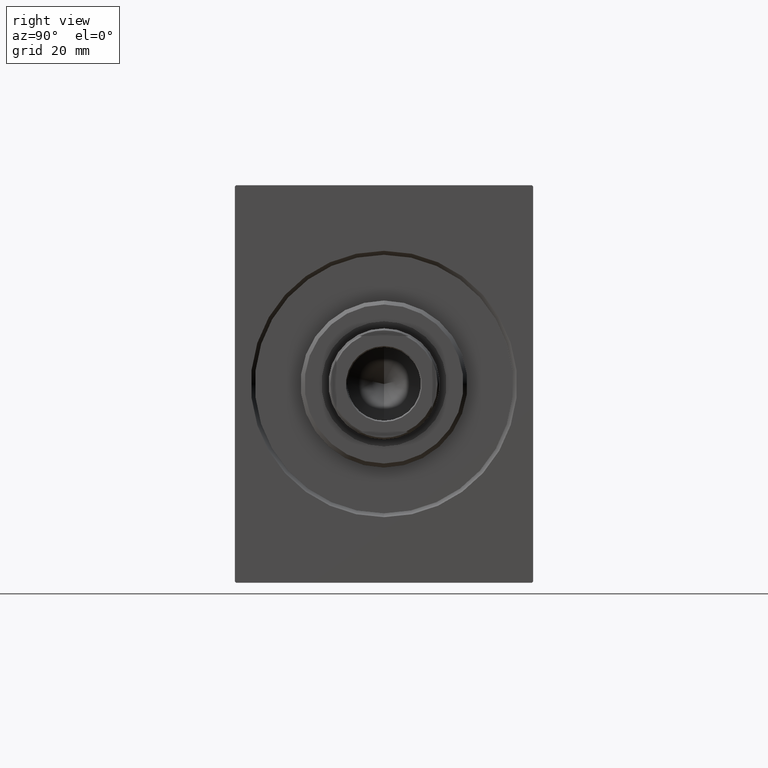
[diagram: clean part render]
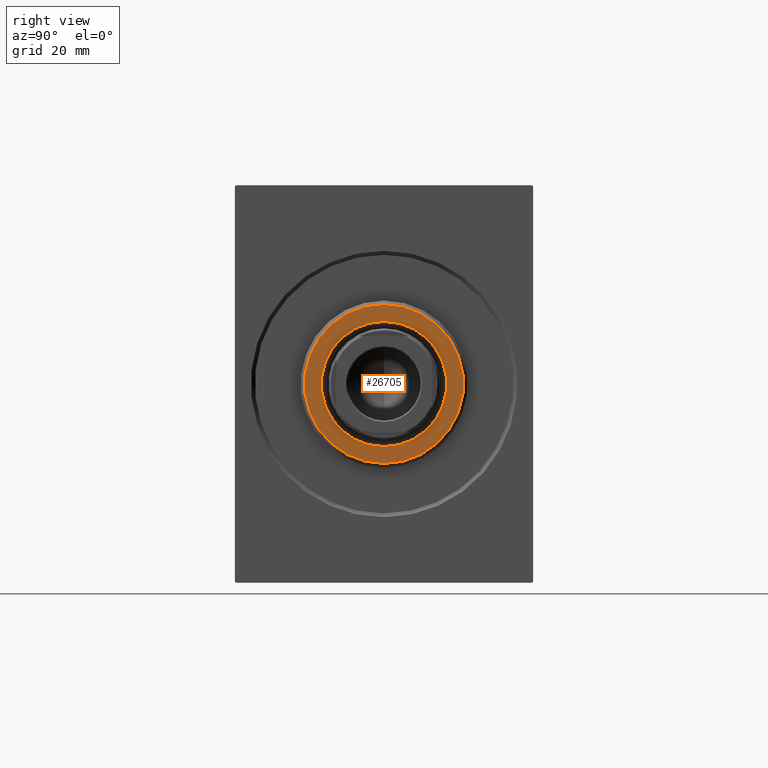
[diagram: same view with one face highlighted and labeled with its STEP entity id]
A machine part, right view. The second image highlights one B-rep face of the part: STEP entity #26705.
In plain terms, the highlighted planar face has unit normal (1, 0, 0).
Its self-contained STEP definition (entity closure, byte-faithful):
#798 = ORIENTED_EDGE ( 'NONE', *, *, #30764, .T. ) ;
#1112 = CIRCLE ( 'NONE', #13653, 20.00000000000001776 ) ;
#3400 = CARTESIAN_POINT ( 'NONE',  ( 3.000000000000000000, 0.000000000000000000, 0.000000000000000000 ) ) ;
#3861 = AXIS2_PLACEMENT_3D ( 'NONE', #3400, #14062, #37464 ) ;
#5665 = VERTEX_POINT ( 'NONE', #27254 ) ;
#5822 = VERTEX_POINT ( 'NONE', #38167 ) ;
#6292 = FACE_BOUND ( 'NONE', #41771, .T. ) ;
#6456 = ORIENTED_EDGE ( 'NONE', *, *, #35264, .T. ) ;
#6519 = CARTESIAN_POINT ( 'NONE',  ( 3.000000000000000000, 0.000000000000000000, 0.000000000000000000 ) ) ;
#6732 = DIRECTION ( 'NONE',  ( 0.000000000000000000, 0.000000000000000000, -1.000000000000000000 ) ) ;
#7788 = CIRCLE ( 'NONE', #24643, 15.75000000000000000 ) ;
#13653 = AXIS2_PLACEMENT_3D ( 'NONE', #33157, #16947, #16520 ) ;
#13722 = AXIS2_PLACEMENT_3D ( 'NONE', #42692, #22569, #15340 ) ;
#14062 = DIRECTION ( 'NONE',  ( 1.000000000000000000, -0.000000000000000000, 0.000000000000000000 ) ) ;
#15340 = DIRECTION ( 'NONE',  ( 0.000000000000000000, 0.000000000000000000, -1.000000000000000000 ) ) ;
#15887 = FACE_OUTER_BOUND ( 'NONE', #37621, .T. ) ;
#15905 = DIRECTION ( 'NONE',  ( 0.000000000000000000, 0.000000000000000000, -1.000000000000000000 ) ) ;
#16342 = CARTESIAN_POINT ( 'NONE',  ( 3.000000000000000000, 0.000000000000000000, 0.000000000000000000 ) ) ;
#16520 = DIRECTION ( 'NONE',  ( 0.000000000000000000, 0.000000000000000000, -1.000000000000000000 ) ) ;
#16947 = DIRECTION ( 'NONE',  ( 1.000000000000000000, -0.000000000000000000, 0.000000000000000000 ) ) ;
#16998 = AXIS2_PLACEMENT_3D ( 'NONE', #6519, #29238, #6732 ) ;
#17190 = VERTEX_POINT ( 'NONE', #23162 ) ;
#17796 = CIRCLE ( 'NONE', #13722, 15.75000000000000000 ) ;
#18837 = ORIENTED_EDGE ( 'NONE', *, *, #41368, .T. ) ;
#18970 = DIRECTION ( 'NONE',  ( -1.000000000000000000, 0.000000000000000000, -0.000000000000000000 ) ) ;
#20038 = PLANE ( 'NONE',  #16998 ) ;
#22569 = DIRECTION ( 'NONE',  ( -1.000000000000000000, 0.000000000000000000, -0.000000000000000000 ) ) ;
#23162 = CARTESIAN_POINT ( 'NONE',  ( 3.000000000000000000, 0.000000000000000000, 20.00000000000001776 ) ) ;
#24643 = AXIS2_PLACEMENT_3D ( 'NONE', #16342, #18970, #15905 ) ;
#26705 = ADVANCED_FACE ( 'NONE', ( #15887, #6292 ), #20038, .T. ) ;
#27254 = CARTESIAN_POINT ( 'NONE',  ( 3.000000000000000000, 0.000000000000000000, 15.75000000000000000 ) ) ;
#27619 = ORIENTED_EDGE ( 'NONE', *, *, #37119, .T. ) ;
#28270 = CIRCLE ( 'NONE', #3861, 20.00000000000001776 ) ;
#29238 = DIRECTION ( 'NONE',  ( 1.000000000000000000, -0.000000000000000000, 0.000000000000000000 ) ) ;
#30611 = CARTESIAN_POINT ( 'NONE',  ( 3.000000000000000000, 2.510525938252075270E-15, -20.00000000000001776 ) ) ;
#30764 = EDGE_CURVE ( 'NONE', #17190, #38478, #28270, .T. ) ;
#33157 = CARTESIAN_POINT ( 'NONE',  ( 3.000000000000000000, 0.000000000000000000, 0.000000000000000000 ) ) ;
#35264 = EDGE_CURVE ( 'NONE', #5665, #5822, #17796, .T. ) ;
#37119 = EDGE_CURVE ( 'NONE', #38478, #17190, #1112, .T. ) ;
#37464 = DIRECTION ( 'NONE',  ( 0.000000000000000000, 0.000000000000000000, -1.000000000000000000 ) ) ;
#37621 = EDGE_LOOP ( 'NONE', ( #798, #27619 ) ) ;
#38167 = CARTESIAN_POINT ( 'NONE',  ( 3.000000000000000000, 1.928818708657080950E-15, -15.75000000000000000 ) ) ;
#38478 = VERTEX_POINT ( 'NONE', #30611 ) ;
#41368 = EDGE_CURVE ( 'NONE', #5822, #5665, #7788, .T. ) ;
#41771 = EDGE_LOOP ( 'NONE', ( #6456, #18837 ) ) ;
#42692 = CARTESIAN_POINT ( 'NONE',  ( 3.000000000000000000, 0.000000000000000000, 0.000000000000000000 ) ) ;